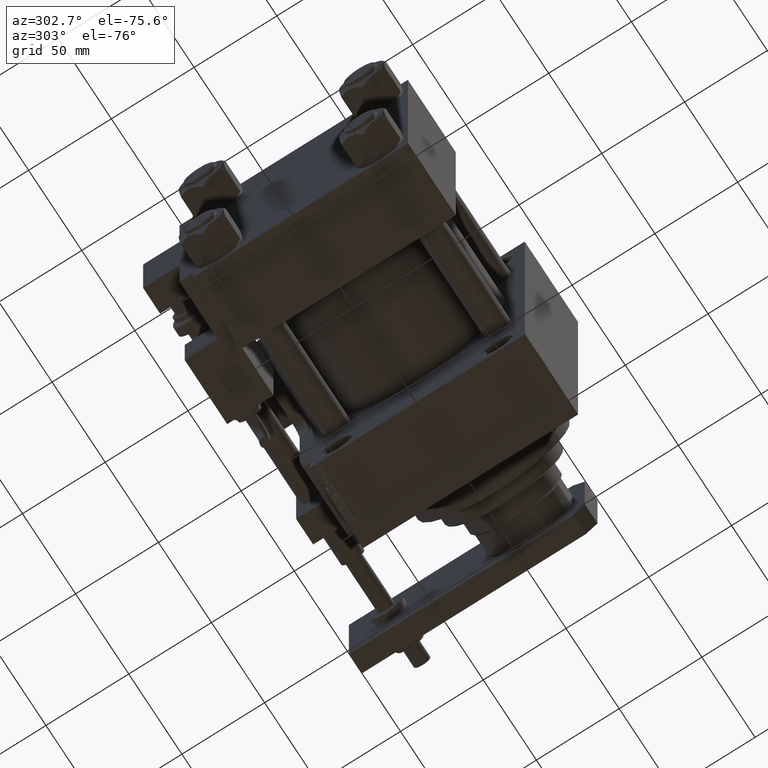
[diagram: clean part render]
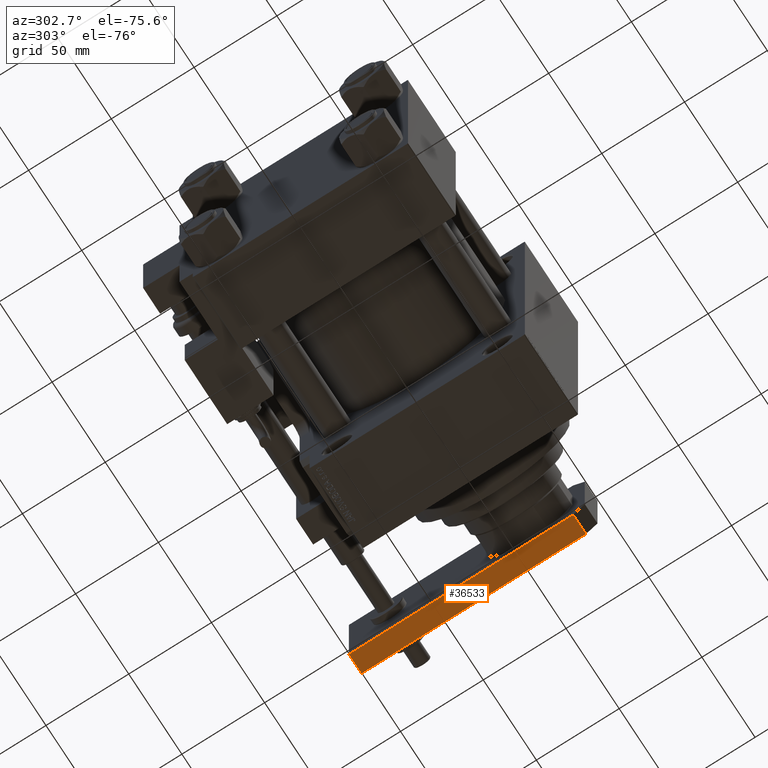
[diagram: same view with one face highlighted and labeled with its STEP entity id]
A machine part, auxiliary view. The second image highlights one B-rep face of the part: STEP entity #36533.
In plain terms, the highlighted planar face has unit normal (0, -0, 1).
Its self-contained STEP definition (entity closure, byte-faithful):
#214 = DIRECTION ( 'NONE',  ( 9.738798461624180871E-17, 1.000000000000000000, 0.000000000000000000 ) ) ;
#246 = EDGE_LOOP ( 'NONE', ( #8867, #15016, #39601, #18932 ) ) ;
#2477 = VECTOR ( 'NONE', #29999, 1000.000000000000000 ) ;
#3064 = EDGE_CURVE ( 'NONE', #36287, #29997, #5392, .T. ) ;
#4584 = CARTESIAN_POINT ( 'NONE',  ( -30.00000000000000000, 142.5000000000000000, 0.000000000000000000 ) ) ;
#5392 = LINE ( 'NONE', #21891, #8436 ) ;
#5456 = EDGE_CURVE ( 'NONE', #50140, #22864, #17541, .T. ) ;
#8436 = VECTOR ( 'NONE', #22163, 1000.000000000000000 ) ;
#8867 = ORIENTED_EDGE ( 'NONE', *, *, #44145, .T. ) ;
#9231 = CARTESIAN_POINT ( 'NONE',  ( -30.00000000000001421, 7.000000000000033751, 0.000000000000000000 ) ) ;
#15016 = ORIENTED_EDGE ( 'NONE', *, *, #5456, .T. ) ;
#15501 = LINE ( 'NONE', #36653, #47230 ) ;
#17541 = LINE ( 'NONE', #34068, #2477 ) ;
#18600 = CARTESIAN_POINT ( 'NONE',  ( -30.00000000000001421, 7.000000000000033751, 12.00000000000000000 ) ) ;
#18932 = ORIENTED_EDGE ( 'NONE', *, *, #3064, .T. ) ;
#19369 = EDGE_CURVE ( 'NONE', #36287, #22864, #15501, .T. ) ;
#20739 = PLANE ( 'NONE',  #33030 ) ;
#21789 = CARTESIAN_POINT ( 'NONE',  ( -30.00000000000000000, 142.5000000000000000, 0.000000000000000000 ) ) ;
#21891 = CARTESIAN_POINT ( 'NONE',  ( -30.00000000000000000, 142.5000000000000000, 12.00000000000000000 ) ) ;
#22163 = DIRECTION ( 'NONE',  ( -0.000000000000000000, -0.000000000000000000, -1.000000000000000000 ) ) ;
#22864 = VERTEX_POINT ( 'NONE', #18600 ) ;
#24544 = DIRECTION ( 'NONE',  ( 1.000000000000000000, -9.738798461624180871E-17, 0.000000000000000000 ) ) ;
#29399 = CARTESIAN_POINT ( 'NONE',  ( -30.00000000000000000, 142.5000000000000000, 12.00000000000000000 ) ) ;
#29997 = VERTEX_POINT ( 'NONE', #21789 ) ;
#29999 = DIRECTION ( 'NONE',  ( 0.000000000000000000, 0.000000000000000000, 1.000000000000000000 ) ) ;
#31870 = CARTESIAN_POINT ( 'NONE',  ( -30.00000000000000000, 142.5000000000000000, 12.00000000000000000 ) ) ;
#32306 = DIRECTION ( 'NONE',  ( -9.738798461624180871E-17, -1.000000000000000000, 0.000000000000000000 ) ) ;
#33030 = AXIS2_PLACEMENT_3D ( 'NONE', #29399, #24544, #214 ) ;
#34068 = CARTESIAN_POINT ( 'NONE',  ( -30.00000000000001421, 7.000000000000033751, 12.00000000000000000 ) ) ;
#36287 = VERTEX_POINT ( 'NONE', #31870 ) ;
#36533 = ADVANCED_FACE ( 'NONE', ( #41331 ), #20739, .F. ) ;
#36653 = CARTESIAN_POINT ( 'NONE',  ( -30.00000000000000000, 142.5000000000000000, 12.00000000000000000 ) ) ;
#37889 = LINE ( 'NONE', #4584, #42688 ) ;
#39601 = ORIENTED_EDGE ( 'NONE', *, *, #19369, .F. ) ;
#41331 = FACE_OUTER_BOUND ( 'NONE', #246, .T. ) ;
#42688 = VECTOR ( 'NONE', #50028, 1000.000000000000000 ) ;
#44145 = EDGE_CURVE ( 'NONE', #29997, #50140, #37889, .T. ) ;
#47230 = VECTOR ( 'NONE', #32306, 1000.000000000000000 ) ;
#50028 = DIRECTION ( 'NONE',  ( -9.738798461624180871E-17, -1.000000000000000000, 0.000000000000000000 ) ) ;
#50140 = VERTEX_POINT ( 'NONE', #9231 ) ;